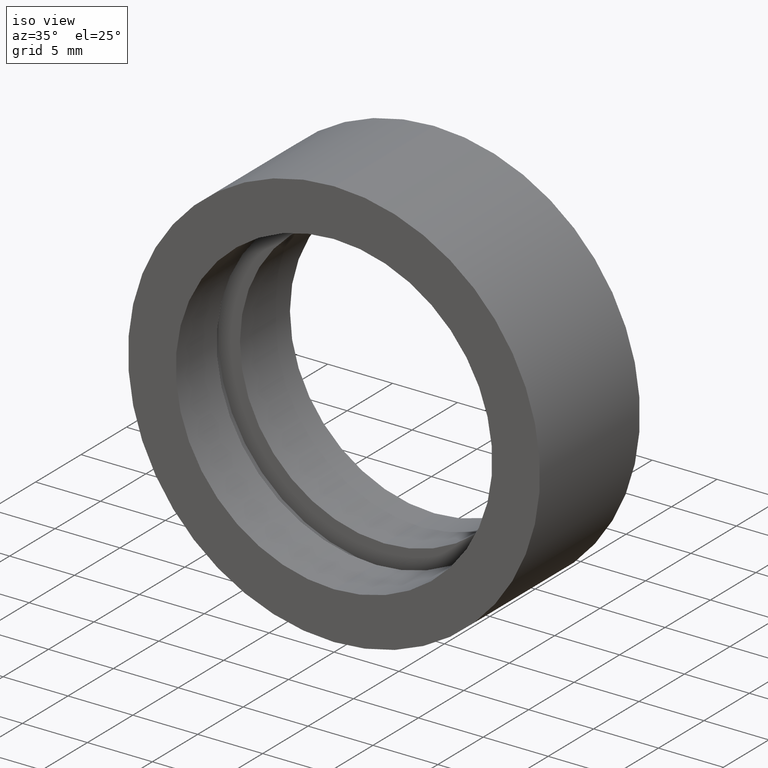
[diagram: clean part render]
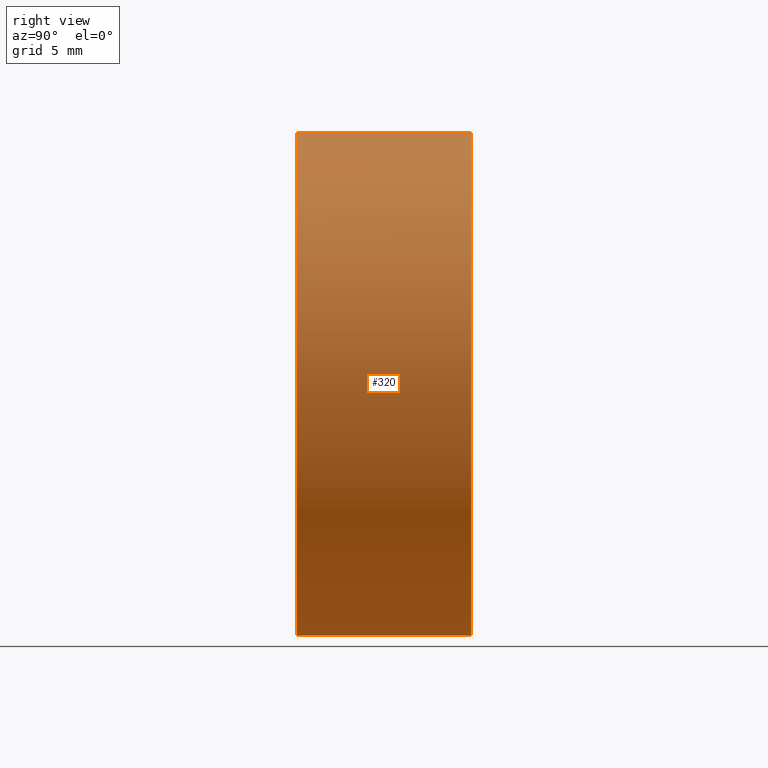
[diagram: tour spotlight — one face highlighted and labeled with its STEP entity id]
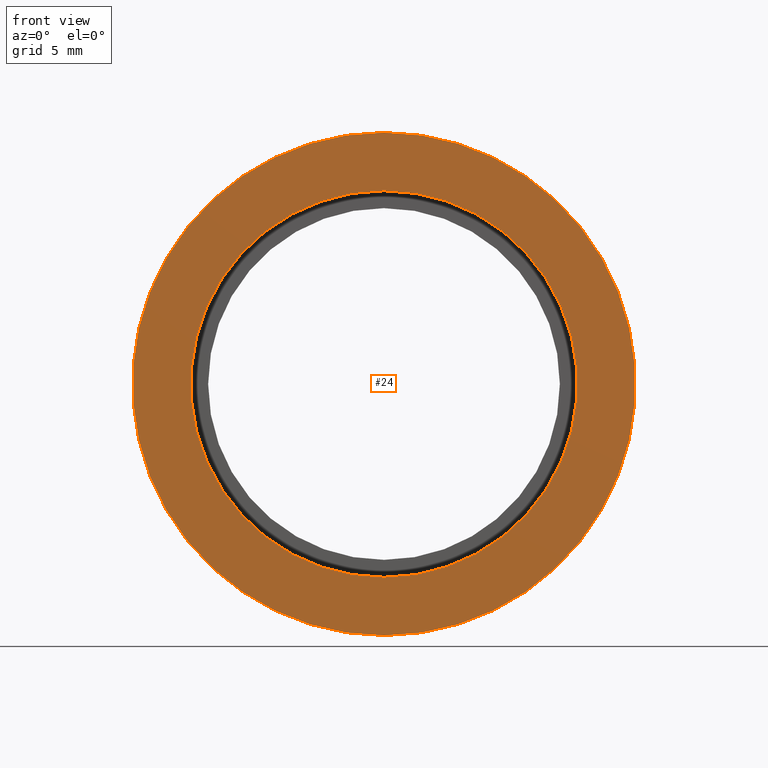
[diagram: tour spotlight — one face highlighted and labeled with its STEP entity id]
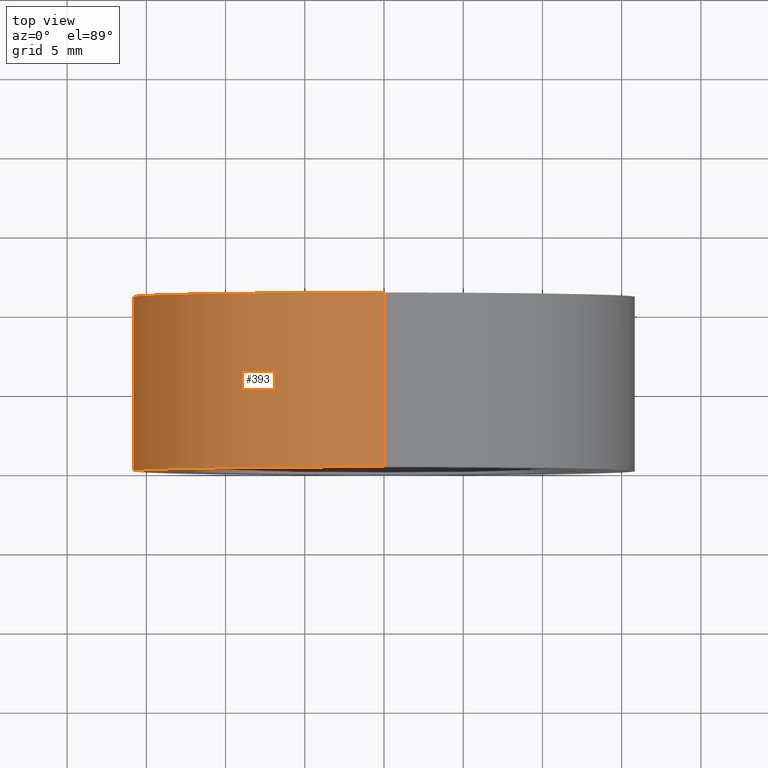
[diagram: tour spotlight — one face highlighted and labeled with its STEP entity id]
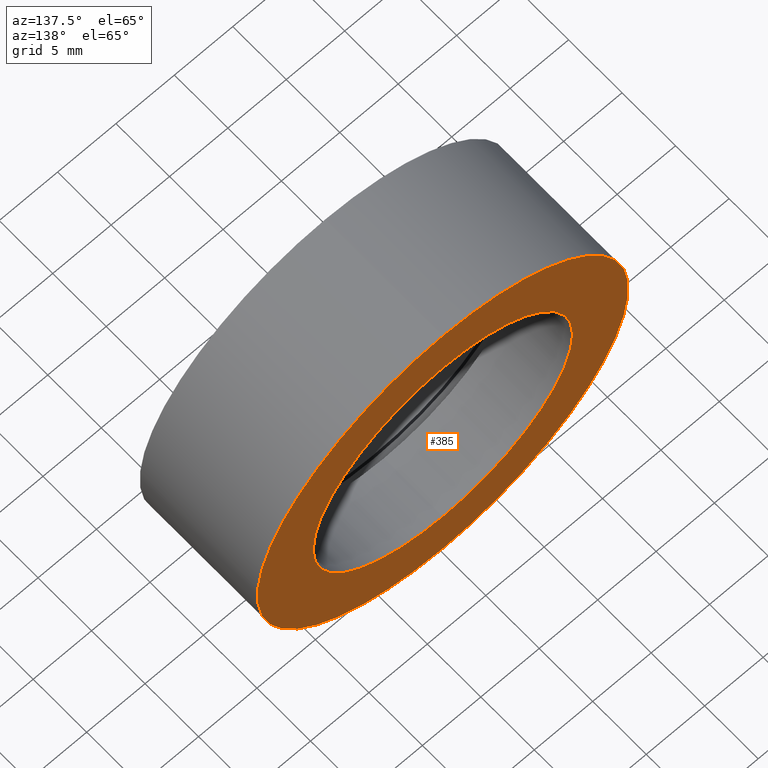
[diagram: tour spotlight — one face highlighted and labeled with its STEP entity id]
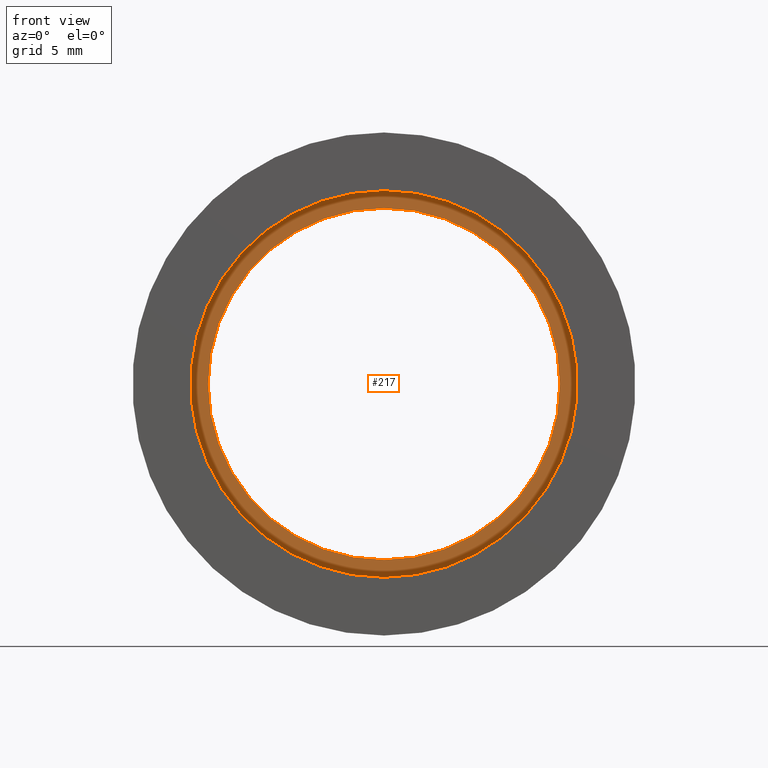
[diagram: tour spotlight — one face highlighted and labeled with its STEP entity id]
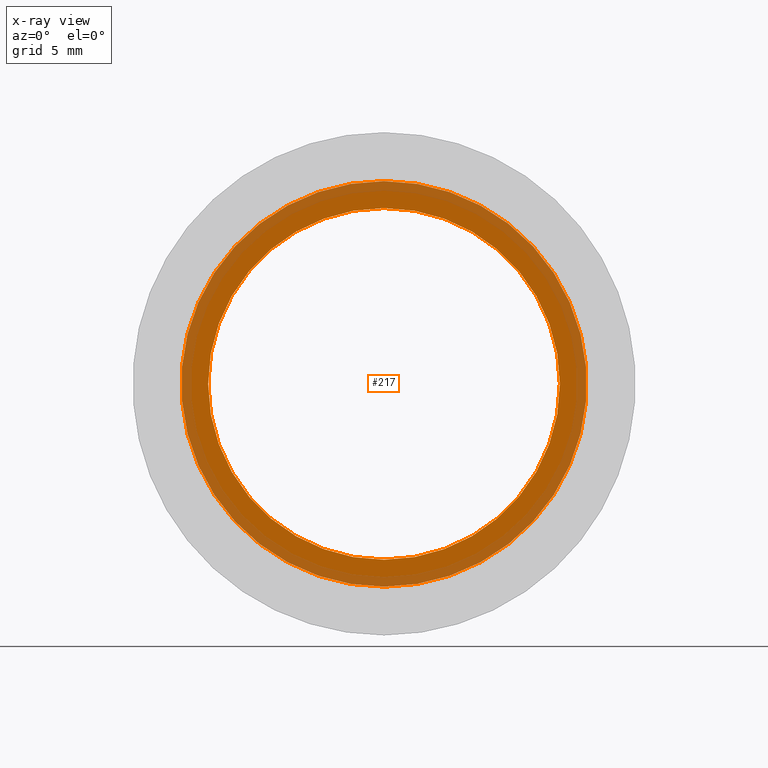
[diagram: x-ray of the same camera — body ghosted, this tour face saturated]
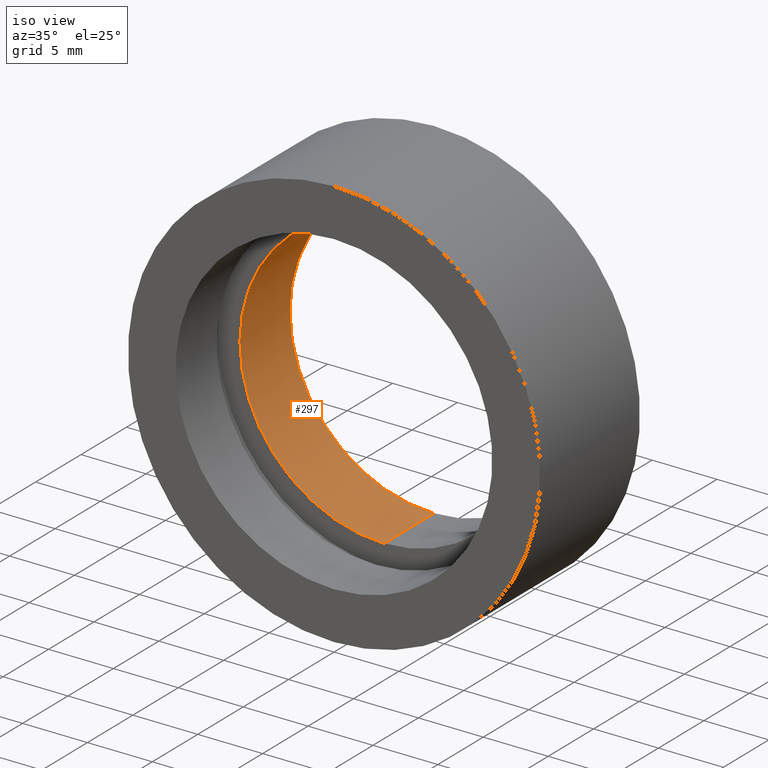
[diagram: tour spotlight — one face highlighted and labeled with its STEP entity id]
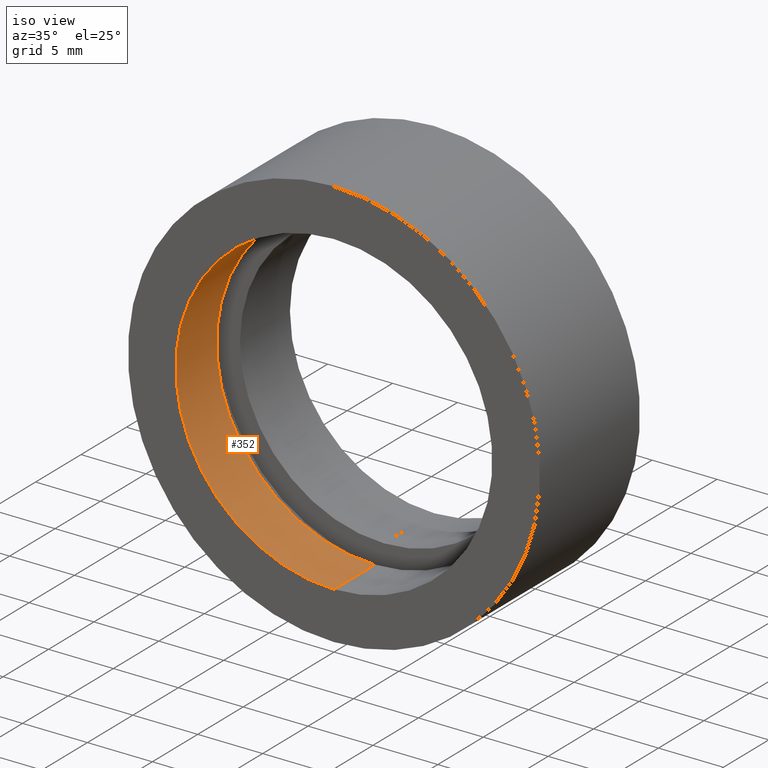
[diagram: tour spotlight — one face highlighted and labeled with its STEP entity id]
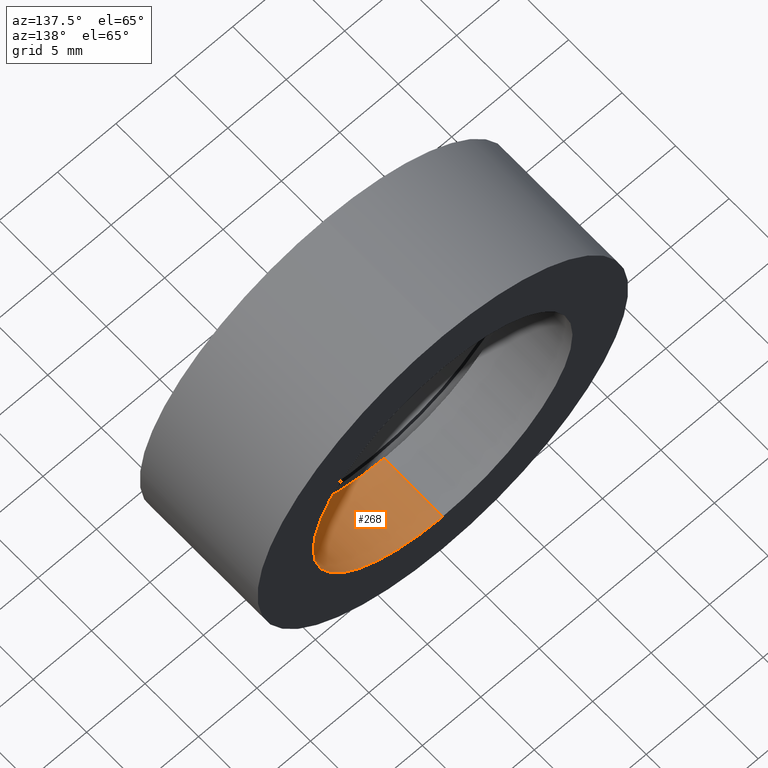
[diagram: tour spotlight — one face highlighted and labeled with its STEP entity id]
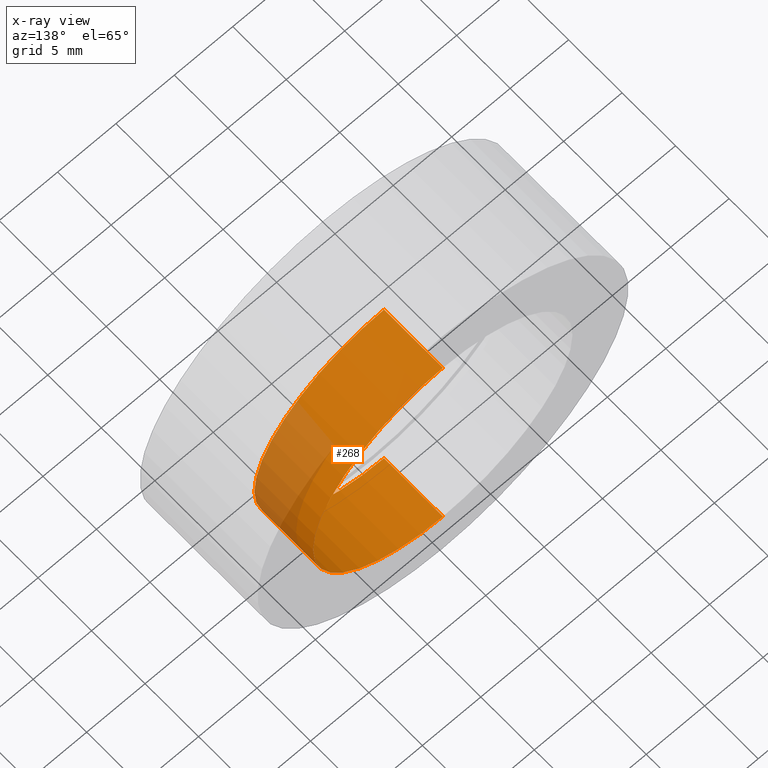
[diagram: x-ray of the same camera — body ghosted, this tour face saturated]
A machine part: a face-by-face anatomy tour. The part has 12 B-rep faces; the first image is the clean iso view, then the 8 largest visible faces are spotlighted one at a time (largest first), each with its STEP entity span.

Face 1 — right view, entity #320. In plain terms, the highlighted cylindrical surface (partial cylindrical patch) has radius 15.875 mm, axis along (-0, 1, -0).
Definition (entity closure, byte-faithful):
#12 = VERTEX_POINT ( 'NONE', #337 ) ;
#15 = DIRECTION ( 'NONE',  ( 0.0000000000000000000, 0.0000000000000000000, 1.000000000000000000 ) ) ;
#52 = VERTEX_POINT ( 'NONE', #389 ) ;
#74 = CARTESIAN_POINT ( 'NONE',  ( 0.0000000000000000000, 10.99999999999999600, 0.0000000000000000000 ) ) ;
#79 = CARTESIAN_POINT ( 'NONE',  ( 0.0000000000000000000, 0.0000000000000000000, 0.0000000000000000000 ) ) ;
#83 = CARTESIAN_POINT ( 'NONE',  ( 1.944126793646423600E-015, 0.0000000000000000000, -15.87500000000000400 ) ) ;
#107 = EDGE_CURVE ( 'NONE', #52, #346, #310, .T. ) ;
#108 = CARTESIAN_POINT ( 'NONE',  ( 0.0000000000000000000, 10.99999999999999600, 15.87500000000000400 ) ) ;
#115 = ORIENTED_EDGE ( 'NONE', *, *, #245, .T. ) ;
#120 = CARTESIAN_POINT ( 'NONE',  ( 1.944126793646423600E-015, 60.02082041425541100, -15.87500000000000400 ) ) ;
#121 = CARTESIAN_POINT ( 'NONE',  ( 0.0000000000000000000, 60.02082041425541100, 0.0000000000000000000 ) ) ;
#127 = LINE ( 'NONE', #120, #327 ) ;
#135 = EDGE_CURVE ( 'NONE', #286, #12, #127, .T. ) ;
#152 = CIRCLE ( 'NONE', #280, 15.87500000000000400 ) ;
#153 = DIRECTION ( 'NONE',  ( 0.0000000000000000000, 0.0000000000000000000, 1.000000000000000000 ) ) ;
#158 = DIRECTION ( 'NONE',  ( -0.0000000000000000000, 1.000000000000000000, -0.0000000000000000000 ) ) ;
#177 = EDGE_LOOP ( 'NONE', ( #115, #289, #381, #429 ) ) ;
#185 = CARTESIAN_POINT ( 'NONE',  ( 0.0000000000000000000, 60.02082041425541100, 15.87500000000000400 ) ) ;
#197 = CYLINDRICAL_SURFACE ( 'NONE', #356, 15.87500000000000400 ) ;
#216 = DIRECTION ( 'NONE',  ( -0.0000000000000000000, 1.000000000000000000, -0.0000000000000000000 ) ) ;
#234 = AXIS2_PLACEMENT_3D ( 'NONE', #74, #367, #390 ) ;
#245 = EDGE_CURVE ( 'NONE', #52, #286, #152, .T. ) ;
#280 = AXIS2_PLACEMENT_3D ( 'NONE', #79, #216, #15 ) ;
#286 = VERTEX_POINT ( 'NONE', #83 ) ;
#289 = ORIENTED_EDGE ( 'NONE', *, *, #135, .T. ) ;
#296 = CIRCLE ( 'NONE', #234, 15.87500000000000400 ) ;
#310 = LINE ( 'NONE', #185, #418 ) ;
#320 = ADVANCED_FACE ( 'NONE', ( #323 ), #197, .T. ) ;
#323 = FACE_OUTER_BOUND ( 'NONE', #177, .T. ) ;
#327 = VECTOR ( 'NONE', #330, 1000.000000000000000 ) ;
#330 = DIRECTION ( 'NONE',  ( -0.0000000000000000000, 1.000000000000000000, -0.0000000000000000000 ) ) ;
#337 = CARTESIAN_POINT ( 'NONE',  ( 1.944126793646423600E-015, 10.99999999999999600, -15.87500000000000400 ) ) ;
#346 = VERTEX_POINT ( 'NONE', #108 ) ;
#356 = AXIS2_PLACEMENT_3D ( 'NONE', #121, #158, #153 ) ;
#367 = DIRECTION ( 'NONE',  ( -0.0000000000000000000, 1.000000000000000000, -0.0000000000000000000 ) ) ;
#379 = DIRECTION ( 'NONE',  ( -0.0000000000000000000, 1.000000000000000000, -0.0000000000000000000 ) ) ;
#381 = ORIENTED_EDGE ( 'NONE', *, *, #417, .F. ) ;
#389 = CARTESIAN_POINT ( 'NONE',  ( 0.0000000000000000000, 0.0000000000000000000, 15.87500000000000400 ) ) ;
#390 = DIRECTION ( 'NONE',  ( 0.0000000000000000000, 0.0000000000000000000, 1.000000000000000000 ) ) ;
#417 = EDGE_CURVE ( 'NONE', #346, #12, #296, .T. ) ;
#418 = VECTOR ( 'NONE', #379, 1000.000000000000000 ) ;
#429 = ORIENTED_EDGE ( 'NONE', *, *, #107, .F. ) ;

Face 2 — front view, entity #24. In plain terms, the highlighted planar face has unit normal (-0, 1, 0).
Definition (entity closure, byte-faithful):
#6 = CARTESIAN_POINT ( 'NONE',  ( 1.494069094959771600E-015, 0.0000000000000000000, -12.20000000000000600 ) ) ;
#15 = DIRECTION ( 'NONE',  ( 0.0000000000000000000, 0.0000000000000000000, 1.000000000000000000 ) ) ;
#18 = CARTESIAN_POINT ( 'NONE',  ( 15.87500000000000400, -2.250288493433258000E-016, 0.0000000000000000000 ) ) ;
#24 = ADVANCED_FACE ( 'NONE', ( #86, #55 ), #274, .F. ) ;
#44 = EDGE_LOOP ( 'NONE', ( #223, #224 ) ) ;
#45 = CIRCLE ( 'NONE', #270, 12.20000000000000600 ) ;
#52 = VERTEX_POINT ( 'NONE', #389 ) ;
#55 = FACE_BOUND ( 'NONE', #44, .T. ) ;
#64 = CARTESIAN_POINT ( 'NONE',  ( 0.0000000000000000000, 0.0000000000000000000, 12.20000000000000600 ) ) ;
#79 = CARTESIAN_POINT ( 'NONE',  ( 0.0000000000000000000, 0.0000000000000000000, 0.0000000000000000000 ) ) ;
#83 = CARTESIAN_POINT ( 'NONE',  ( 1.944126793646423600E-015, 0.0000000000000000000, -15.87500000000000400 ) ) ;
#86 = FACE_OUTER_BOUND ( 'NONE', #213, .T. ) ;
#97 = DIRECTION ( 'NONE',  ( -0.0000000000000000000, 1.000000000000000000, -0.0000000000000000000 ) ) ;
#103 = CARTESIAN_POINT ( 'NONE',  ( 0.0000000000000000000, 0.0000000000000000000, 0.0000000000000000000 ) ) ;
#125 = VERTEX_POINT ( 'NONE', #6 ) ;
#139 = DIRECTION ( 'NONE',  ( -0.0000000000000000000, 1.000000000000000000, 0.0000000000000000000 ) ) ;
#140 = CIRCLE ( 'NONE', #151, 12.20000000000000600 ) ;
#141 = VERTEX_POINT ( 'NONE', #64 ) ;
#147 = DIRECTION ( 'NONE',  ( -0.0000000000000000000, 1.000000000000000000, -0.0000000000000000000 ) ) ;
#151 = AXIS2_PLACEMENT_3D ( 'NONE', #103, #324, #334 ) ;
#152 = CIRCLE ( 'NONE', #280, 15.87500000000000400 ) ;
#156 = EDGE_CURVE ( 'NONE', #125, #141, #45, .T. ) ;
#166 = DIRECTION ( 'NONE',  ( 0.0000000000000000000, 0.0000000000000000000, 1.000000000000000000 ) ) ;
#211 = AXIS2_PLACEMENT_3D ( 'NONE', #18, #139, #294 ) ;
#213 = EDGE_LOOP ( 'NONE', ( #402, #364 ) ) ;
#216 = DIRECTION ( 'NONE',  ( -0.0000000000000000000, 1.000000000000000000, -0.0000000000000000000 ) ) ;
#223 = ORIENTED_EDGE ( 'NONE', *, *, #431, .T. ) ;
#224 = ORIENTED_EDGE ( 'NONE', *, *, #156, .T. ) ;
#245 = EDGE_CURVE ( 'NONE', #52, #286, #152, .T. ) ;
#270 = AXIS2_PLACEMENT_3D ( 'NONE', #375, #97, #166 ) ;
#274 = PLANE ( 'NONE',  #211 ) ;
#280 = AXIS2_PLACEMENT_3D ( 'NONE', #79, #216, #15 ) ;
#286 = VERTEX_POINT ( 'NONE', #83 ) ;
#291 = CARTESIAN_POINT ( 'NONE',  ( 0.0000000000000000000, 0.0000000000000000000, 0.0000000000000000000 ) ) ;
#294 = DIRECTION ( 'NONE',  ( 0.0000000000000000000, 0.0000000000000000000, 1.000000000000000000 ) ) ;
#316 = EDGE_CURVE ( 'NONE', #286, #52, #405, .T. ) ;
#324 = DIRECTION ( 'NONE',  ( -0.0000000000000000000, 1.000000000000000000, -0.0000000000000000000 ) ) ;
#334 = DIRECTION ( 'NONE',  ( 0.0000000000000000000, 0.0000000000000000000, 1.000000000000000000 ) ) ;
#361 = DIRECTION ( 'NONE',  ( 0.0000000000000000000, 0.0000000000000000000, 1.000000000000000000 ) ) ;
#364 = ORIENTED_EDGE ( 'NONE', *, *, #316, .F. ) ;
#375 = CARTESIAN_POINT ( 'NONE',  ( 0.0000000000000000000, 0.0000000000000000000, 0.0000000000000000000 ) ) ;
#380 = AXIS2_PLACEMENT_3D ( 'NONE', #291, #147, #361 ) ;
#389 = CARTESIAN_POINT ( 'NONE',  ( 0.0000000000000000000, 0.0000000000000000000, 15.87500000000000400 ) ) ;
#402 = ORIENTED_EDGE ( 'NONE', *, *, #245, .F. ) ;
#405 = CIRCLE ( 'NONE', #380, 15.87500000000000400 ) ;
#431 = EDGE_CURVE ( 'NONE', #141, #125, #140, .T. ) ;

Face 3 — top view, entity #393. In plain terms, the highlighted cylindrical surface (partial cylindrical patch) has radius 15.875 mm, axis along (-0, 1, -0).
Definition (entity closure, byte-faithful):
#8 = CYLINDRICAL_SURFACE ( 'NONE', #179, 15.87500000000000400 ) ;
#11 = ORIENTED_EDGE ( 'NONE', *, *, #107, .T. ) ;
#12 = VERTEX_POINT ( 'NONE', #337 ) ;
#52 = VERTEX_POINT ( 'NONE', #389 ) ;
#59 = CARTESIAN_POINT ( 'NONE',  ( 0.0000000000000000000, 60.02082041425541100, 0.0000000000000000000 ) ) ;
#83 = CARTESIAN_POINT ( 'NONE',  ( 1.944126793646423600E-015, 0.0000000000000000000, -15.87500000000000400 ) ) ;
#107 = EDGE_CURVE ( 'NONE', #52, #346, #310, .T. ) ;
#108 = CARTESIAN_POINT ( 'NONE',  ( 0.0000000000000000000, 10.99999999999999600, 15.87500000000000400 ) ) ;
#112 = DIRECTION ( 'NONE',  ( -0.0000000000000000000, 1.000000000000000000, -0.0000000000000000000 ) ) ;
#120 = CARTESIAN_POINT ( 'NONE',  ( 1.944126793646423600E-015, 60.02082041425541100, -15.87500000000000400 ) ) ;
#127 = LINE ( 'NONE', #120, #327 ) ;
#135 = EDGE_CURVE ( 'NONE', #286, #12, #127, .T. ) ;
#147 = DIRECTION ( 'NONE',  ( -0.0000000000000000000, 1.000000000000000000, -0.0000000000000000000 ) ) ;
#157 = ORIENTED_EDGE ( 'NONE', *, *, #293, .F. ) ;
#179 = AXIS2_PLACEMENT_3D ( 'NONE', #59, #112, #283 ) ;
#183 = CIRCLE ( 'NONE', #311, 15.87500000000000400 ) ;
#185 = CARTESIAN_POINT ( 'NONE',  ( 0.0000000000000000000, 60.02082041425541100, 15.87500000000000400 ) ) ;
#198 = EDGE_LOOP ( 'NONE', ( #398, #298, #11, #157 ) ) ;
#219 = FACE_OUTER_BOUND ( 'NONE', #198, .T. ) ;
#247 = DIRECTION ( 'NONE',  ( -0.0000000000000000000, 1.000000000000000000, -0.0000000000000000000 ) ) ;
#283 = DIRECTION ( 'NONE',  ( 0.0000000000000000000, 0.0000000000000000000, 1.000000000000000000 ) ) ;
#286 = VERTEX_POINT ( 'NONE', #83 ) ;
#291 = CARTESIAN_POINT ( 'NONE',  ( 0.0000000000000000000, 0.0000000000000000000, 0.0000000000000000000 ) ) ;
#293 = EDGE_CURVE ( 'NONE', #12, #346, #183, .T. ) ;
#298 = ORIENTED_EDGE ( 'NONE', *, *, #316, .T. ) ;
#310 = LINE ( 'NONE', #185, #418 ) ;
#311 = AXIS2_PLACEMENT_3D ( 'NONE', #321, #247, #318 ) ;
#316 = EDGE_CURVE ( 'NONE', #286, #52, #405, .T. ) ;
#318 = DIRECTION ( 'NONE',  ( 0.0000000000000000000, 0.0000000000000000000, 1.000000000000000000 ) ) ;
#321 = CARTESIAN_POINT ( 'NONE',  ( 0.0000000000000000000, 10.99999999999999600, 0.0000000000000000000 ) ) ;
#327 = VECTOR ( 'NONE', #330, 1000.000000000000000 ) ;
#330 = DIRECTION ( 'NONE',  ( -0.0000000000000000000, 1.000000000000000000, -0.0000000000000000000 ) ) ;
#337 = CARTESIAN_POINT ( 'NONE',  ( 1.944126793646423600E-015, 10.99999999999999600, -15.87500000000000400 ) ) ;
#346 = VERTEX_POINT ( 'NONE', #108 ) ;
#361 = DIRECTION ( 'NONE',  ( 0.0000000000000000000, 0.0000000000000000000, 1.000000000000000000 ) ) ;
#379 = DIRECTION ( 'NONE',  ( -0.0000000000000000000, 1.000000000000000000, -0.0000000000000000000 ) ) ;
#380 = AXIS2_PLACEMENT_3D ( 'NONE', #291, #147, #361 ) ;
#389 = CARTESIAN_POINT ( 'NONE',  ( 0.0000000000000000000, 0.0000000000000000000, 15.87500000000000400 ) ) ;
#393 = ADVANCED_FACE ( 'NONE', ( #219 ), #8, .T. ) ;
#398 = ORIENTED_EDGE ( 'NONE', *, *, #135, .F. ) ;
#405 = CIRCLE ( 'NONE', #380, 15.87500000000000400 ) ;
#418 = VECTOR ( 'NONE', #379, 1000.000000000000000 ) ;

Face 4 — auxiliary view, entity #385. In plain terms, the highlighted planar face has unit normal (0, -1, 0).
Definition (entity closure, byte-faithful):
#3 = AXIS2_PLACEMENT_3D ( 'NONE', #423, #229, #53 ) ;
#10 = EDGE_CURVE ( 'NONE', #148, #130, #301, .T. ) ;
#12 = VERTEX_POINT ( 'NONE', #337 ) ;
#23 = DIRECTION ( 'NONE',  ( 0.0000000000000000000, 0.0000000000000000000, 1.000000000000000000 ) ) ;
#26 = ORIENTED_EDGE ( 'NONE', *, *, #417, .T. ) ;
#53 = DIRECTION ( 'NONE',  ( 0.0000000000000000000, -0.0000000000000000000, -1.000000000000000000 ) ) ;
#63 = ORIENTED_EDGE ( 'NONE', *, *, #201, .F. ) ;
#74 = CARTESIAN_POINT ( 'NONE',  ( 0.0000000000000000000, 10.99999999999999600, 0.0000000000000000000 ) ) ;
#84 = EDGE_LOOP ( 'NONE', ( #63, #190 ) ) ;
#99 = ORIENTED_EDGE ( 'NONE', *, *, #293, .T. ) ;
#104 = AXIS2_PLACEMENT_3D ( 'NONE', #383, #433, #23 ) ;
#108 = CARTESIAN_POINT ( 'NONE',  ( 0.0000000000000000000, 10.99999999999999600, 15.87500000000000400 ) ) ;
#130 = VERTEX_POINT ( 'NONE', #188 ) ;
#148 = VERTEX_POINT ( 'NONE', #233 ) ;
#183 = CIRCLE ( 'NONE', #311, 15.87500000000000400 ) ;
#184 = EDGE_LOOP ( 'NONE', ( #26, #99 ) ) ;
#188 = CARTESIAN_POINT ( 'NONE',  ( 0.0000000000000000000, 10.99999999999999600, 11.10000000000000700 ) ) ;
#190 = ORIENTED_EDGE ( 'NONE', *, *, #10, .F. ) ;
#201 = EDGE_CURVE ( 'NONE', #130, #148, #269, .T. ) ;
#222 = DIRECTION ( 'NONE',  ( -0.0000000000000000000, 1.000000000000000000, -0.0000000000000000000 ) ) ;
#229 = DIRECTION ( 'NONE',  ( 0.0000000000000000000, -1.000000000000000000, 0.0000000000000000000 ) ) ;
#233 = CARTESIAN_POINT ( 'NONE',  ( 1.359357947053563100E-015, 10.99999999999999600, -11.10000000000000700 ) ) ;
#234 = AXIS2_PLACEMENT_3D ( 'NONE', #74, #367, #390 ) ;
#247 = DIRECTION ( 'NONE',  ( -0.0000000000000000000, 1.000000000000000000, -0.0000000000000000000 ) ) ;
#269 = CIRCLE ( 'NONE', #325, 11.10000000000000700 ) ;
#288 = FACE_OUTER_BOUND ( 'NONE', #184, .T. ) ;
#293 = EDGE_CURVE ( 'NONE', #12, #346, #183, .T. ) ;
#296 = CIRCLE ( 'NONE', #234, 15.87500000000000400 ) ;
#301 = CIRCLE ( 'NONE', #104, 11.10000000000000700 ) ;
#305 = DIRECTION ( 'NONE',  ( 0.0000000000000000000, 0.0000000000000000000, 1.000000000000000000 ) ) ;
#309 = FACE_BOUND ( 'NONE', #84, .T. ) ;
#311 = AXIS2_PLACEMENT_3D ( 'NONE', #321, #247, #318 ) ;
#318 = DIRECTION ( 'NONE',  ( 0.0000000000000000000, 0.0000000000000000000, 1.000000000000000000 ) ) ;
#321 = CARTESIAN_POINT ( 'NONE',  ( 0.0000000000000000000, 10.99999999999999600, 0.0000000000000000000 ) ) ;
#325 = AXIS2_PLACEMENT_3D ( 'NONE', #416, #222, #305 ) ;
#337 = CARTESIAN_POINT ( 'NONE',  ( 1.944126793646423600E-015, 10.99999999999999600, -15.87500000000000400 ) ) ;
#346 = VERTEX_POINT ( 'NONE', #108 ) ;
#367 = DIRECTION ( 'NONE',  ( -0.0000000000000000000, 1.000000000000000000, -0.0000000000000000000 ) ) ;
#383 = CARTESIAN_POINT ( 'NONE',  ( 0.0000000000000000000, 10.99999999999999600, 0.0000000000000000000 ) ) ;
#385 = ADVANCED_FACE ( 'NONE', ( #309, #288 ), #406, .F. ) ;
#390 = DIRECTION ( 'NONE',  ( 0.0000000000000000000, 0.0000000000000000000, 1.000000000000000000 ) ) ;
#406 = PLANE ( 'NONE',  #3 ) ;
#416 = CARTESIAN_POINT ( 'NONE',  ( 0.0000000000000000000, 10.99999999999999600, 0.0000000000000000000 ) ) ;
#417 = EDGE_CURVE ( 'NONE', #346, #12, #296, .T. ) ;
#423 = CARTESIAN_POINT ( 'NONE',  ( 11.10000000000000700, 11.00000000000000000, 0.0000000000000000000 ) ) ;
#433 = DIRECTION ( 'NONE',  ( -0.0000000000000000000, 1.000000000000000000, -0.0000000000000000000 ) ) ;

Face 5 — front view, entity #217. An x-ray twin of the same camera follows (body ghosted, this face saturated) — the face is partly hidden behind the body. In plain terms, the highlighted planar face has unit normal (-0, 1, 0).
Definition (entity closure, byte-faithful):
#25 = EDGE_LOOP ( 'NONE', ( #60, #239 ) ) ;
#43 = VERTEX_POINT ( 'NONE', #333 ) ;
#46 = FACE_OUTER_BOUND ( 'NONE', #161, .T. ) ;
#56 = DIRECTION ( 'NONE',  ( 0.0000000000000000000, 0.0000000000000000000, 1.000000000000000000 ) ) ;
#60 = ORIENTED_EDGE ( 'NONE', *, *, #251, .T. ) ;
#61 = DIRECTION ( 'NONE',  ( -0.0000000000000000000, 1.000000000000000000, 0.0000000000000000000 ) ) ;
#72 = CARTESIAN_POINT ( 'NONE',  ( 0.0000000000000000000, 5.499999999999998200, 0.0000000000000000000 ) ) ;
#87 = AXIS2_PLACEMENT_3D ( 'NONE', #96, #129, #195 ) ;
#88 = CARTESIAN_POINT ( 'NONE',  ( 0.0000000000000000000, 5.499999999999998200, 0.0000000000000000000 ) ) ;
#89 = DIRECTION ( 'NONE',  ( -0.0000000000000000000, 1.000000000000000000, -0.0000000000000000000 ) ) ;
#91 = EDGE_CURVE ( 'NONE', #304, #43, #426, .T. ) ;
#96 = CARTESIAN_POINT ( 'NONE',  ( 0.0000000000000000000, 5.499999999999998200, 0.0000000000000000000 ) ) ;
#116 = CARTESIAN_POINT ( 'NONE',  ( 0.0000000000000000000, 5.499999999999998200, 0.0000000000000000000 ) ) ;
#129 = DIRECTION ( 'NONE',  ( -0.0000000000000000000, 1.000000000000000000, -0.0000000000000000000 ) ) ;
#131 = VERTEX_POINT ( 'NONE', #335 ) ;
#136 = CARTESIAN_POINT ( 'NONE',  ( 0.0000000000000000000, 5.499999999999998200, 11.10000000000000700 ) ) ;
#161 = EDGE_LOOP ( 'NONE', ( #314, #372 ) ) ;
#163 = AXIS2_PLACEMENT_3D ( 'NONE', #72, #338, #411 ) ;
#173 = DIRECTION ( 'NONE',  ( 0.0000000000000000000, 0.0000000000000000000, 1.000000000000000000 ) ) ;
#174 = PLANE ( 'NONE',  #410 ) ;
#178 = EDGE_CURVE ( 'NONE', #43, #304, #200, .T. ) ;
#194 = CIRCLE ( 'NONE', #236, 11.10000000000000700 ) ;
#195 = DIRECTION ( 'NONE',  ( 0.0000000000000000000, 0.0000000000000000000, 1.000000000000000000 ) ) ;
#196 = VERTEX_POINT ( 'NONE', #136 ) ;
#200 = CIRCLE ( 'NONE', #279, 12.80000000000000800 ) ;
#217 = ADVANCED_FACE ( 'NONE', ( #46, #250 ), #174, .F. ) ;
#226 = CIRCLE ( 'NONE', #87, 11.10000000000000700 ) ;
#236 = AXIS2_PLACEMENT_3D ( 'NONE', #116, #299, #409 ) ;
#239 = ORIENTED_EDGE ( 'NONE', *, *, #424, .T. ) ;
#250 = FACE_BOUND ( 'NONE', #25, .T. ) ;
#251 = EDGE_CURVE ( 'NONE', #196, #131, #194, .T. ) ;
#279 = AXIS2_PLACEMENT_3D ( 'NONE', #88, #89, #173 ) ;
#299 = DIRECTION ( 'NONE',  ( -0.0000000000000000000, 1.000000000000000000, -0.0000000000000000000 ) ) ;
#304 = VERTEX_POINT ( 'NONE', #317 ) ;
#314 = ORIENTED_EDGE ( 'NONE', *, *, #178, .F. ) ;
#317 = CARTESIAN_POINT ( 'NONE',  ( 1.567547902908613200E-015, 5.499999999999998200, -12.80000000000000800 ) ) ;
#333 = CARTESIAN_POINT ( 'NONE',  ( 0.0000000000000000000, 5.499999999999998200, 12.80000000000000800 ) ) ;
#335 = CARTESIAN_POINT ( 'NONE',  ( 1.359357947053563100E-015, 5.499999999999998200, -11.10000000000000700 ) ) ;
#338 = DIRECTION ( 'NONE',  ( -0.0000000000000000000, 1.000000000000000000, -0.0000000000000000000 ) ) ;
#339 = CARTESIAN_POINT ( 'NONE',  ( 12.80000000000000800, 5.500000000000000000, 0.0000000000000000000 ) ) ;
#372 = ORIENTED_EDGE ( 'NONE', *, *, #91, .F. ) ;
#409 = DIRECTION ( 'NONE',  ( 0.0000000000000000000, 0.0000000000000000000, 1.000000000000000000 ) ) ;
#410 = AXIS2_PLACEMENT_3D ( 'NONE', #339, #61, #56 ) ;
#411 = DIRECTION ( 'NONE',  ( 0.0000000000000000000, 0.0000000000000000000, 1.000000000000000000 ) ) ;
#424 = EDGE_CURVE ( 'NONE', #131, #196, #226, .T. ) ;
#426 = CIRCLE ( 'NONE', #163, 12.80000000000000800 ) ;

Face 6 — iso view, entity #297. In plain terms, the highlighted cylindrical surface (partial cylindrical patch) has radius 11.1 mm, axis along (-0, 1, -0).
Definition (entity closure, byte-faithful):
#10 = EDGE_CURVE ( 'NONE', #148, #130, #301, .T. ) ;
#23 = DIRECTION ( 'NONE',  ( 0.0000000000000000000, 0.0000000000000000000, 1.000000000000000000 ) ) ;
#27 = AXIS2_PLACEMENT_3D ( 'NONE', #230, #225, #244 ) ;
#37 = ORIENTED_EDGE ( 'NONE', *, *, #48, .F. ) ;
#48 = EDGE_CURVE ( 'NONE', #196, #130, #373, .T. ) ;
#69 = ORIENTED_EDGE ( 'NONE', *, *, #412, .T. ) ;
#71 = CYLINDRICAL_SURFACE ( 'NONE', #27, 11.10000000000000700 ) ;
#87 = AXIS2_PLACEMENT_3D ( 'NONE', #96, #129, #195 ) ;
#96 = CARTESIAN_POINT ( 'NONE',  ( 0.0000000000000000000, 5.499999999999998200, 0.0000000000000000000 ) ) ;
#100 = CARTESIAN_POINT ( 'NONE',  ( 1.359357947053563100E-015, 60.02082041425541100, -11.10000000000000700 ) ) ;
#104 = AXIS2_PLACEMENT_3D ( 'NONE', #383, #433, #23 ) ;
#110 = LINE ( 'NONE', #100, #128 ) ;
#114 = CARTESIAN_POINT ( 'NONE',  ( 0.0000000000000000000, 60.02082041425541100, 11.10000000000000700 ) ) ;
#128 = VECTOR ( 'NONE', #264, 1000.000000000000000 ) ;
#129 = DIRECTION ( 'NONE',  ( -0.0000000000000000000, 1.000000000000000000, -0.0000000000000000000 ) ) ;
#130 = VERTEX_POINT ( 'NONE', #188 ) ;
#131 = VERTEX_POINT ( 'NONE', #335 ) ;
#136 = CARTESIAN_POINT ( 'NONE',  ( 0.0000000000000000000, 5.499999999999998200, 11.10000000000000700 ) ) ;
#148 = VERTEX_POINT ( 'NONE', #233 ) ;
#187 = EDGE_LOOP ( 'NONE', ( #189, #69, #355, #37 ) ) ;
#188 = CARTESIAN_POINT ( 'NONE',  ( 0.0000000000000000000, 10.99999999999999600, 11.10000000000000700 ) ) ;
#189 = ORIENTED_EDGE ( 'NONE', *, *, #424, .F. ) ;
#192 = VECTOR ( 'NONE', #358, 1000.000000000000000 ) ;
#195 = DIRECTION ( 'NONE',  ( 0.0000000000000000000, 0.0000000000000000000, 1.000000000000000000 ) ) ;
#196 = VERTEX_POINT ( 'NONE', #136 ) ;
#225 = DIRECTION ( 'NONE',  ( -0.0000000000000000000, 1.000000000000000000, -0.0000000000000000000 ) ) ;
#226 = CIRCLE ( 'NONE', #87, 11.10000000000000700 ) ;
#228 = FACE_OUTER_BOUND ( 'NONE', #187, .T. ) ;
#230 = CARTESIAN_POINT ( 'NONE',  ( 0.0000000000000000000, 60.02082041425541100, 0.0000000000000000000 ) ) ;
#233 = CARTESIAN_POINT ( 'NONE',  ( 1.359357947053563100E-015, 10.99999999999999600, -11.10000000000000700 ) ) ;
#244 = DIRECTION ( 'NONE',  ( 0.0000000000000000000, 0.0000000000000000000, 1.000000000000000000 ) ) ;
#264 = DIRECTION ( 'NONE',  ( -0.0000000000000000000, 1.000000000000000000, -0.0000000000000000000 ) ) ;
#297 = ADVANCED_FACE ( 'NONE', ( #228 ), #71, .F. ) ;
#301 = CIRCLE ( 'NONE', #104, 11.10000000000000700 ) ;
#335 = CARTESIAN_POINT ( 'NONE',  ( 1.359357947053563100E-015, 5.499999999999998200, -11.10000000000000700 ) ) ;
#355 = ORIENTED_EDGE ( 'NONE', *, *, #10, .T. ) ;
#358 = DIRECTION ( 'NONE',  ( -0.0000000000000000000, 1.000000000000000000, -0.0000000000000000000 ) ) ;
#373 = LINE ( 'NONE', #114, #192 ) ;
#383 = CARTESIAN_POINT ( 'NONE',  ( 0.0000000000000000000, 10.99999999999999600, 0.0000000000000000000 ) ) ;
#412 = EDGE_CURVE ( 'NONE', #131, #148, #110, .T. ) ;
#424 = EDGE_CURVE ( 'NONE', #131, #196, #226, .T. ) ;
#433 = DIRECTION ( 'NONE',  ( -0.0000000000000000000, 1.000000000000000000, -0.0000000000000000000 ) ) ;

Face 7 — iso view, entity #352. In plain terms, the highlighted cylindrical surface (partial cylindrical patch) has radius 12.2 mm, axis along (-0, 1, -0).
Definition (entity closure, byte-faithful):
#6 = CARTESIAN_POINT ( 'NONE',  ( 1.494069094959771600E-015, 0.0000000000000000000, -12.20000000000000600 ) ) ;
#17 = EDGE_LOOP ( 'NONE', ( #284, #208, #315, #212 ) ) ;
#38 = CARTESIAN_POINT ( 'NONE',  ( 1.494069094959771600E-015, 4.499999999999997300, -12.20000000000000600 ) ) ;
#39 = VERTEX_POINT ( 'NONE', #220 ) ;
#41 = CARTESIAN_POINT ( 'NONE',  ( 0.0000000000000000000, 60.02082041425541100, 12.20000000000000600 ) ) ;
#45 = CIRCLE ( 'NONE', #270, 12.20000000000000600 ) ;
#64 = CARTESIAN_POINT ( 'NONE',  ( 0.0000000000000000000, 0.0000000000000000000, 12.20000000000000600 ) ) ;
#76 = DIRECTION ( 'NONE',  ( -0.0000000000000000000, 1.000000000000000000, -0.0000000000000000000 ) ) ;
#78 = DIRECTION ( 'NONE',  ( -0.0000000000000000000, 1.000000000000000000, -0.0000000000000000000 ) ) ;
#97 = DIRECTION ( 'NONE',  ( -0.0000000000000000000, 1.000000000000000000, -0.0000000000000000000 ) ) ;
#125 = VERTEX_POINT ( 'NONE', #6 ) ;
#134 = DIRECTION ( 'NONE',  ( 0.0000000000000000000, 0.0000000000000000000, 1.000000000000000000 ) ) ;
#141 = VERTEX_POINT ( 'NONE', #64 ) ;
#146 = DIRECTION ( 'NONE',  ( -0.0000000000000000000, 1.000000000000000000, -0.0000000000000000000 ) ) ;
#156 = EDGE_CURVE ( 'NONE', #125, #141, #45, .T. ) ;
#162 = DIRECTION ( 'NONE',  ( 0.0000000000000000000, 0.0000000000000000000, 1.000000000000000000 ) ) ;
#166 = DIRECTION ( 'NONE',  ( 0.0000000000000000000, 0.0000000000000000000, 1.000000000000000000 ) ) ;
#182 = VECTOR ( 'NONE', #146, 1000.000000000000000 ) ;
#208 = ORIENTED_EDGE ( 'NONE', *, *, #404, .T. ) ;
#212 = ORIENTED_EDGE ( 'NONE', *, *, #259, .F. ) ;
#215 = LINE ( 'NONE', #396, #366 ) ;
#220 = CARTESIAN_POINT ( 'NONE',  ( 0.0000000000000000000, 4.499999999999997300, 12.20000000000000600 ) ) ;
#221 = EDGE_CURVE ( 'NONE', #413, #39, #235, .T. ) ;
#235 = CIRCLE ( 'NONE', #384, 12.20000000000000600 ) ;
#246 = AXIS2_PLACEMENT_3D ( 'NONE', #378, #256, #162 ) ;
#256 = DIRECTION ( 'NONE',  ( -0.0000000000000000000, 1.000000000000000000, -0.0000000000000000000 ) ) ;
#259 = EDGE_CURVE ( 'NONE', #141, #39, #419, .T. ) ;
#266 = FACE_OUTER_BOUND ( 'NONE', #17, .T. ) ;
#270 = AXIS2_PLACEMENT_3D ( 'NONE', #375, #97, #166 ) ;
#284 = ORIENTED_EDGE ( 'NONE', *, *, #156, .F. ) ;
#315 = ORIENTED_EDGE ( 'NONE', *, *, #221, .T. ) ;
#352 = ADVANCED_FACE ( 'NONE', ( #266 ), #408, .F. ) ;
#366 = VECTOR ( 'NONE', #76, 1000.000000000000000 ) ;
#375 = CARTESIAN_POINT ( 'NONE',  ( 0.0000000000000000000, 0.0000000000000000000, 0.0000000000000000000 ) ) ;
#378 = CARTESIAN_POINT ( 'NONE',  ( 0.0000000000000000000, 60.02082041425541100, 0.0000000000000000000 ) ) ;
#384 = AXIS2_PLACEMENT_3D ( 'NONE', #430, #78, #134 ) ;
#396 = CARTESIAN_POINT ( 'NONE',  ( 1.494069094959771600E-015, 60.02082041425541100, -12.20000000000000600 ) ) ;
#404 = EDGE_CURVE ( 'NONE', #125, #413, #215, .T. ) ;
#408 = CYLINDRICAL_SURFACE ( 'NONE', #246, 12.20000000000000600 ) ;
#413 = VERTEX_POINT ( 'NONE', #38 ) ;
#419 = LINE ( 'NONE', #41, #182 ) ;
#430 = CARTESIAN_POINT ( 'NONE',  ( 0.0000000000000000000, 4.499999999999997300, 0.0000000000000000000 ) ) ;

Face 8 — auxiliary view, entity #268. An x-ray twin of the same camera follows (body ghosted, this face saturated) — the face is partly hidden behind the body. In plain terms, the highlighted cylindrical surface (partial cylindrical patch) has radius 11.1 mm, axis along (-0, 1, -0).
Definition (entity closure, byte-faithful):
#14 = EDGE_LOOP ( 'NONE', ( #207, #347, #344, #62 ) ) ;
#48 = EDGE_CURVE ( 'NONE', #196, #130, #373, .T. ) ;
#51 = DIRECTION ( 'NONE',  ( 0.0000000000000000000, 0.0000000000000000000, 1.000000000000000000 ) ) ;
#62 = ORIENTED_EDGE ( 'NONE', *, *, #201, .T. ) ;
#100 = CARTESIAN_POINT ( 'NONE',  ( 1.359357947053563100E-015, 60.02082041425541100, -11.10000000000000700 ) ) ;
#110 = LINE ( 'NONE', #100, #128 ) ;
#113 = CYLINDRICAL_SURFACE ( 'NONE', #350, 11.10000000000000700 ) ;
#114 = CARTESIAN_POINT ( 'NONE',  ( 0.0000000000000000000, 60.02082041425541100, 11.10000000000000700 ) ) ;
#116 = CARTESIAN_POINT ( 'NONE',  ( 0.0000000000000000000, 5.499999999999998200, 0.0000000000000000000 ) ) ;
#128 = VECTOR ( 'NONE', #264, 1000.000000000000000 ) ;
#130 = VERTEX_POINT ( 'NONE', #188 ) ;
#131 = VERTEX_POINT ( 'NONE', #335 ) ;
#136 = CARTESIAN_POINT ( 'NONE',  ( 0.0000000000000000000, 5.499999999999998200, 11.10000000000000700 ) ) ;
#148 = VERTEX_POINT ( 'NONE', #233 ) ;
#168 = FACE_OUTER_BOUND ( 'NONE', #14, .T. ) ;
#188 = CARTESIAN_POINT ( 'NONE',  ( 0.0000000000000000000, 10.99999999999999600, 11.10000000000000700 ) ) ;
#192 = VECTOR ( 'NONE', #358, 1000.000000000000000 ) ;
#194 = CIRCLE ( 'NONE', #236, 11.10000000000000700 ) ;
#196 = VERTEX_POINT ( 'NONE', #136 ) ;
#201 = EDGE_CURVE ( 'NONE', #130, #148, #269, .T. ) ;
#207 = ORIENTED_EDGE ( 'NONE', *, *, #412, .F. ) ;
#222 = DIRECTION ( 'NONE',  ( -0.0000000000000000000, 1.000000000000000000, -0.0000000000000000000 ) ) ;
#233 = CARTESIAN_POINT ( 'NONE',  ( 1.359357947053563100E-015, 10.99999999999999600, -11.10000000000000700 ) ) ;
#236 = AXIS2_PLACEMENT_3D ( 'NONE', #116, #299, #409 ) ;
#251 = EDGE_CURVE ( 'NONE', #196, #131, #194, .T. ) ;
#264 = DIRECTION ( 'NONE',  ( -0.0000000000000000000, 1.000000000000000000, -0.0000000000000000000 ) ) ;
#268 = ADVANCED_FACE ( 'NONE', ( #168 ), #113, .F. ) ;
#269 = CIRCLE ( 'NONE', #325, 11.10000000000000700 ) ;
#278 = CARTESIAN_POINT ( 'NONE',  ( 0.0000000000000000000, 60.02082041425541100, 0.0000000000000000000 ) ) ;
#299 = DIRECTION ( 'NONE',  ( -0.0000000000000000000, 1.000000000000000000, -0.0000000000000000000 ) ) ;
#305 = DIRECTION ( 'NONE',  ( 0.0000000000000000000, 0.0000000000000000000, 1.000000000000000000 ) ) ;
#325 = AXIS2_PLACEMENT_3D ( 'NONE', #416, #222, #305 ) ;
#335 = CARTESIAN_POINT ( 'NONE',  ( 1.359357947053563100E-015, 5.499999999999998200, -11.10000000000000700 ) ) ;
#343 = DIRECTION ( 'NONE',  ( -0.0000000000000000000, 1.000000000000000000, -0.0000000000000000000 ) ) ;
#344 = ORIENTED_EDGE ( 'NONE', *, *, #48, .T. ) ;
#347 = ORIENTED_EDGE ( 'NONE', *, *, #251, .F. ) ;
#350 = AXIS2_PLACEMENT_3D ( 'NONE', #278, #343, #51 ) ;
#358 = DIRECTION ( 'NONE',  ( -0.0000000000000000000, 1.000000000000000000, -0.0000000000000000000 ) ) ;
#373 = LINE ( 'NONE', #114, #192 ) ;
#409 = DIRECTION ( 'NONE',  ( 0.0000000000000000000, 0.0000000000000000000, 1.000000000000000000 ) ) ;
#412 = EDGE_CURVE ( 'NONE', #131, #148, #110, .T. ) ;
#416 = CARTESIAN_POINT ( 'NONE',  ( 0.0000000000000000000, 10.99999999999999600, 0.0000000000000000000 ) ) ;